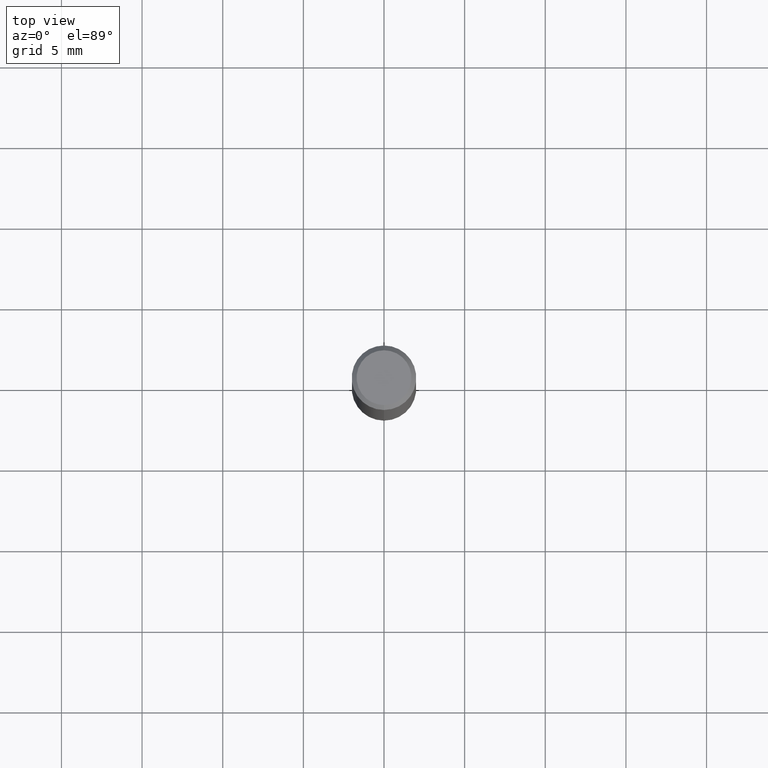
[diagram: clean part render]
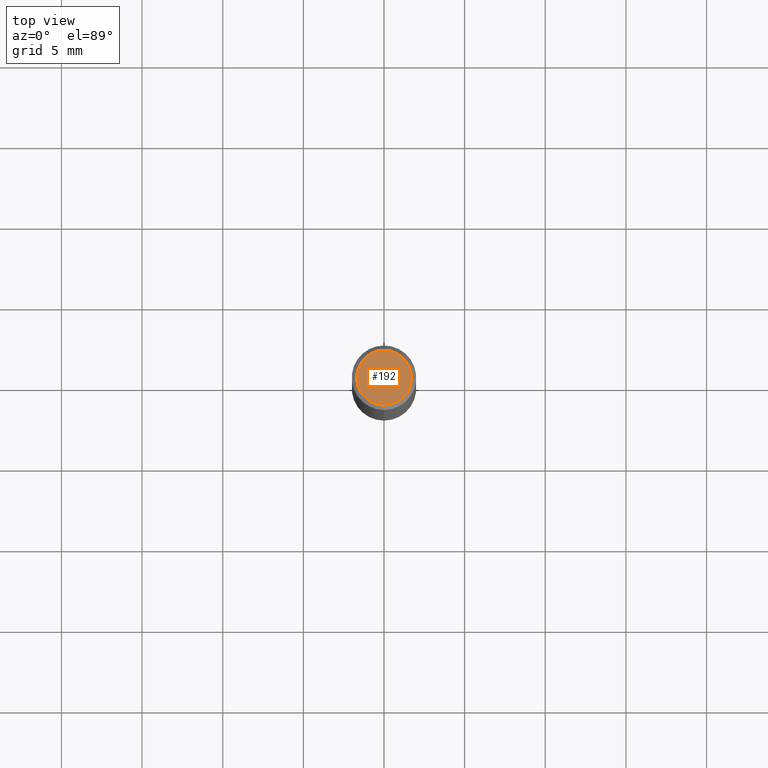
[diagram: same view with one face highlighted and labeled with its STEP entity id]
A machine part, top view. The second image highlights one B-rep face of the part: STEP entity #192.
In plain terms, the highlighted planar face has unit normal (-0, 0, 1).
Its self-contained STEP definition (entity closure, byte-faithful):
#116=VERTEX_POINT('',#259);
#130=EDGE_CURVE('',#210,#116,#274,.T.);
#168=EDGE_CURVE('',#116,#210,#318,.T.);
#192=ADVANCED_FACE('',(#344),#345,.T.);
#210=VERTEX_POINT('',#366);
#259=CARTESIAN_POINT('',(2.08183080149804E-016,-1.7,0.0));
#274=CIRCLE('',#438,1.7);
#318=CIRCLE('',#491,1.7);
#344=FACE_OUTER_BOUND('',#526,.T.);
#345=PLANE('',#527);
#366=CARTESIAN_POINT('',(0.0,1.7,0.0));
#438=AXIS2_PLACEMENT_3D('',#602,#603,#604);
#491=AXIS2_PLACEMENT_3D('',#665,#666,#667);
#526=EDGE_LOOP('',(#695,#696));
#527=AXIS2_PLACEMENT_3D('',#697,#698,#699);
#602=CARTESIAN_POINT('',(0.0,0.0,0.0));
#603=DIRECTION('',(0.0,0.0,-1.0));
#604=DIRECTION('',(0.0,1.0,0.0));
#665=CARTESIAN_POINT('',(0.0,0.0,0.0));
#666=DIRECTION('',(0.0,0.0,-1.0));
#667=DIRECTION('',(0.0,1.0,0.0));
#695=ORIENTED_EDGE('',*,*,#130,.F.);
#696=ORIENTED_EDGE('',*,*,#168,.F.);
#697=CARTESIAN_POINT('',(0.0,0.85,0.0));
#698=DIRECTION('',(-0.0,0.0,1.0));
#699=DIRECTION('',(0.0,-1.0,0.0));